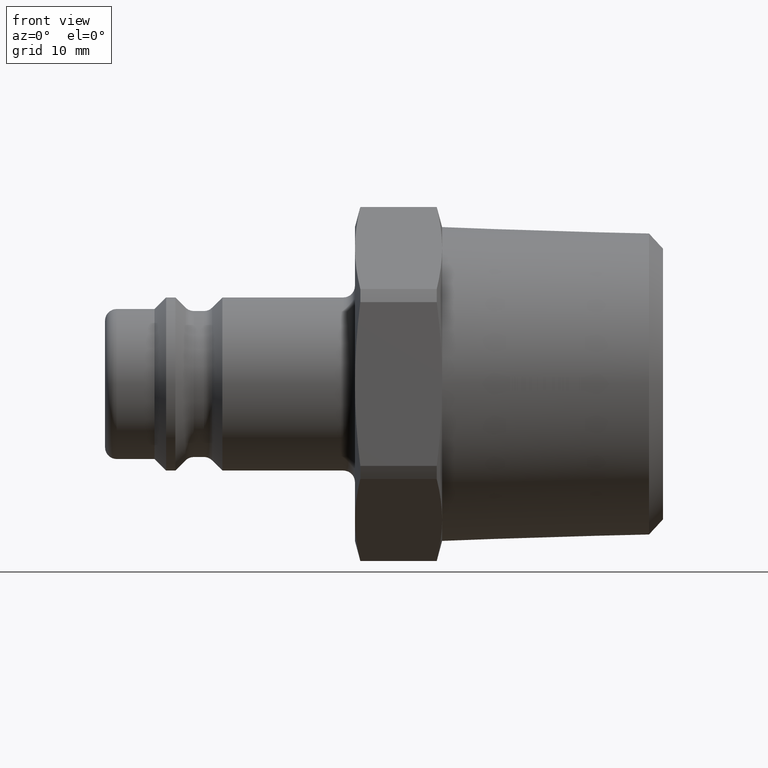
[diagram: clean part render]
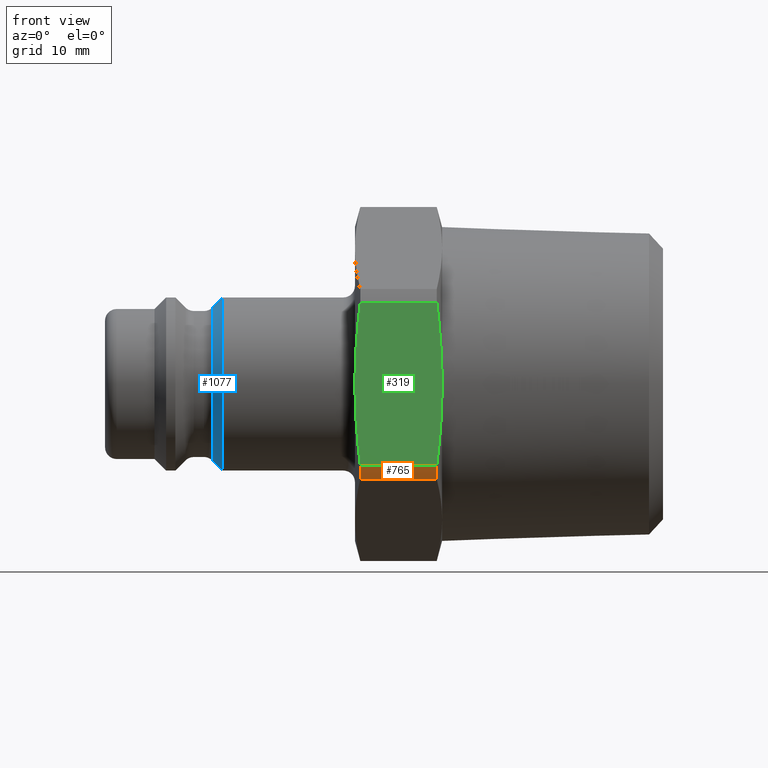
[diagram: same view with three faces highlighted in distinct colors, each labeled with its STEP entity id]
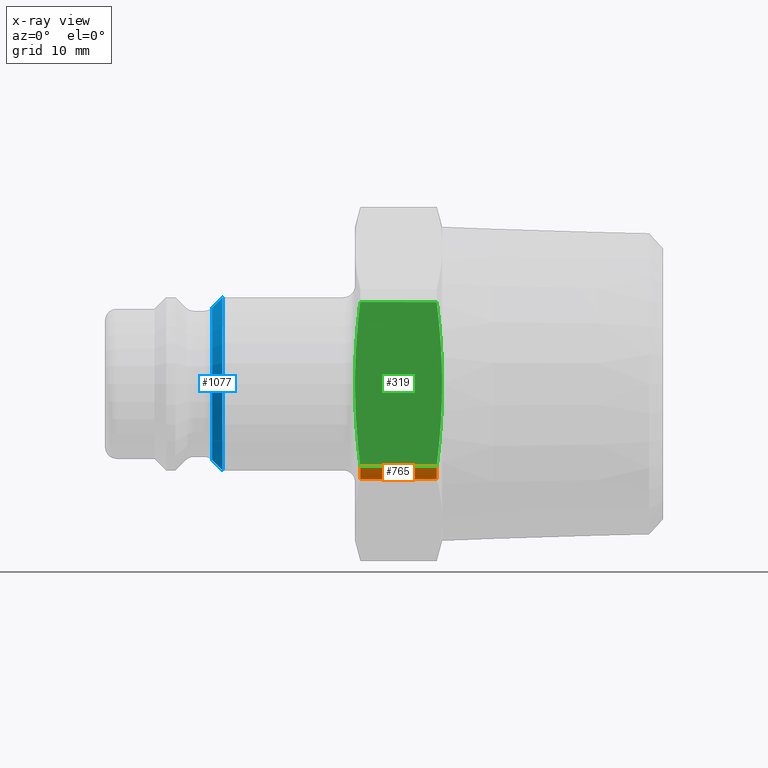
[diagram: x-ray of the same camera — body ghosted, the three highlighted faces saturated]
A machine part, front view with three faces highlighted in distinct colors.
The next image is the same camera in x-ray (body ghosted, the three faces saturated) — at least one of them is partly hidden behind the body in this view.
Their STEP definitions:

[orange] entity #765 — the highlighted cylindrical surface (partial cylindrical patch) has radius 15.225 mm, axis along (1, 0, 0).
#197=CARTESIAN_POINT('',(28.537787643056323,-12.846143760608012,-8.171732709884228));
#198=VERTEX_POINT('',#197);
#212=CARTESIAN_POINT('',(21.962212356943684,-12.846143760608012,-8.171732709884228));
#213=VERTEX_POINT('',#212);
#214=CARTESIAN_POINT('',(21.962212356943684,-12.846143760608012,-8.171732709884228));
#215=DIRECTION('',(1.0,0.0,0.0));
#216=VECTOR('',#215,6.575575286112638);
#217=LINE('',#214,#216);
#218=EDGE_CURVE('',#213,#198,#217,.T.);
#241=CARTESIAN_POINT('',(21.962212356943684,-13.500000000000004,-7.039220482411382));
#242=VERTEX_POINT('',#241);
#258=CARTESIAN_POINT('',(28.537787643056323,-13.500000000000004,-7.039220482411382));
#259=VERTEX_POINT('',#258);
#260=CARTESIAN_POINT('',(28.537787643056323,-13.500000000000004,-7.039220482411382));
#261=DIRECTION('',(-1.0,0.0,0.0));
#262=VECTOR('',#261,6.575575286112638);
#263=LINE('',#260,#262);
#264=EDGE_CURVE('',#259,#242,#263,.T.);
#590=CARTESIAN_POINT('',(28.537787643056319,0.0,0.0));
#591=DIRECTION('',(1.0,0.0,0.0));
#592=DIRECTION('',(0.0,1.0,0.0));
#593=AXIS2_PLACEMENT_3D('',#590,#591,#592);
#594=CIRCLE('',#593,15.225000000000000);
#595=EDGE_CURVE('',#259,#198,#594,.T.);
#748=CARTESIAN_POINT('',(25.250000000000004,0.0,0.0));
#749=DIRECTION('',(1.0,0.0,0.0));
#750=DIRECTION('',(0.0,1.0,0.0));
#751=AXIS2_PLACEMENT_3D('',#748,#749,#750);
#752=CYLINDRICAL_SURFACE('',#751,15.225000000000000);
#753=ORIENTED_EDGE('',*,*,#218,.T.);
#754=ORIENTED_EDGE('',*,*,#595,.F.);
#755=ORIENTED_EDGE('',*,*,#264,.T.);
#756=CARTESIAN_POINT('',(21.962212356943684,0.0,0.0));
#757=DIRECTION('',(1.0,0.0,0.0));
#758=DIRECTION('',(0.0,1.0,0.0));
#759=AXIS2_PLACEMENT_3D('',#756,#757,#758);
#760=CIRCLE('',#759,15.225000000000000);
#761=EDGE_CURVE('',#242,#213,#760,.T.);
#762=ORIENTED_EDGE('',*,*,#761,.T.);
#763=EDGE_LOOP('',(#753,#754,#755,#762));
#764=FACE_OUTER_BOUND('',#763,.T.);
#765=ADVANCED_FACE('',(#764),#752,.T.);

[blue] entity #1077 — the highlighted conical surface has half-angle 45 deg.
#980=CARTESIAN_POINT('',(10.100000000000000,7.500000000000000,0.0));
#981=VERTEX_POINT('',#980);
#982=CARTESIAN_POINT('',(10.100000000000000,0.0,0.0));
#983=DIRECTION('',(1.0,0.0,0.0));
#984=DIRECTION('',(0.0,1.0,0.0));
#985=AXIS2_PLACEMENT_3D('',#982,#983,#984);
#986=CIRCLE('',#985,7.500000000000000);
#987=EDGE_CURVE('',#981,#981,#986,.T.);
#1034=CARTESIAN_POINT('',(9.217893218813451,6.617893218813452,-1.620916E-015));
#1035=VERTEX_POINT('',#1034);
#1036=CARTESIAN_POINT('',(9.217893218813451,0.0,-8.104582E-016));
#1037=DIRECTION('',(-1.0,0.0,0.0));
#1038=DIRECTION('',(0.0,-1.0,0.0));
#1039=AXIS2_PLACEMENT_3D('',#1036,#1037,#1038);
#1040=CIRCLE('',#1039,6.617893218813452);
#1041=EDGE_CURVE('',#1035,#1035,#1040,.T.);
#1066=CARTESIAN_POINT('',(9.512499999999999,0.0,0.0));
#1067=DIRECTION('',(1.0,0.0,0.0));
#1068=DIRECTION('',(0.0,1.0,0.0));
#1069=AXIS2_PLACEMENT_3D('',#1066,#1067,#1068);
#1070=CONICAL_SURFACE('',#1069,6.912500000000001,44.999999999999979);
#1071=ORIENTED_EDGE('',*,*,#987,.F.);
#1072=EDGE_LOOP('',(#1071));
#1073=FACE_OUTER_BOUND('',#1072,.T.);
#1074=ORIENTED_EDGE('',*,*,#1041,.F.);
#1075=EDGE_LOOP('',(#1074));
#1076=FACE_BOUND('',#1075,.T.);
#1077=ADVANCED_FACE('',(#1073,#1076),#1070,.T.);

[green] entity #319 — the highlighted planar face has unit normal (0, 1, 0).
#236=CARTESIAN_POINT('',(29.438941219643269,-13.500000000000000,1.110223E-015));
#237=DIRECTION('',(0.0,1.0,0.0));
#238=DIRECTION('',(0.0,0.0,1.0));
#239=AXIS2_PLACEMENT_3D('',#236,#237,#238);
#240=PLANE('',#239);
#241=CARTESIAN_POINT('',(21.962212356943684,-13.500000000000004,-7.039220482411382));
#242=VERTEX_POINT('',#241);
#243=CARTESIAN_POINT('',(21.500000000000004,-13.500000000000000,2.248202E-015));
#244=VERTEX_POINT('',#243);
#245=CARTESIAN_POINT('',(21.962212356943684,-13.500000000000004,-7.039220482411360));
#246=CARTESIAN_POINT('',(21.500000000000004,-13.500000000000000,-3.308249835075842));
#247=CARTESIAN_POINT('',(21.500000000000000,-13.500000000000000,2.248202E-015));
#255=(BOUNDED_CURVE()B_SPLINE_CURVE(2,(#245,#246,#247),.UNSPECIFIED.,.F.,.U.)B_SPLINE_CURVE_WITH_KNOTS((3,3),(0.0,0.705781608914781),.UNSPECIFIED.)CURVE()GEOMETRIC_REPRESENTATION_ITEM()RATIONAL_B_SPLINE_CURVE((1.0,1.031449896451090,1.0))REPRESENTATION_ITEM(''));
#256=EDGE_CURVE('',#242,#244,#255,.T.);
#257=ORIENTED_EDGE('',*,*,#256,.F.);
#258=CARTESIAN_POINT('',(28.537787643056323,-13.500000000000004,-7.039220482411382));
#259=VERTEX_POINT('',#258);
#260=CARTESIAN_POINT('',(28.537787643056323,-13.500000000000004,-7.039220482411382));
#261=DIRECTION('',(-1.0,0.0,0.0));
#262=VECTOR('',#261,6.575575286112638);
#263=LINE('',#260,#262);
#264=EDGE_CURVE('',#259,#242,#263,.T.);
#265=ORIENTED_EDGE('',*,*,#264,.F.);
#266=CARTESIAN_POINT('',(29.000000000000039,-13.499999999999998,2.248202E-015));
#267=VERTEX_POINT('',#266);
#268=CARTESIAN_POINT('',(29.000000000000007,-13.500000000000000,2.248202E-015));
#269=CARTESIAN_POINT('',(29.000000000000014,-13.500000000000000,-3.308249835075886));
#270=CARTESIAN_POINT('',(28.537787643056319,-13.500000000000000,-7.039220482411403));
#278=(BOUNDED_CURVE()B_SPLINE_CURVE(2,(#268,#269,#270),.UNSPECIFIED.,.F.,.U.)B_SPLINE_CURVE_WITH_KNOTS((3,3),(0.705781608914785,1.411563217829570),.UNSPECIFIED.)CURVE()GEOMETRIC_REPRESENTATION_ITEM()RATIONAL_B_SPLINE_CURVE((1.0,1.031449896451026,1.0))REPRESENTATION_ITEM(''));
#279=EDGE_CURVE('',#267,#259,#278,.T.);
#280=ORIENTED_EDGE('',*,*,#279,.F.);
#281=CARTESIAN_POINT('',(28.537787643056323,-13.499999999999998,7.039220482411387));
#282=VERTEX_POINT('',#281);
#283=CARTESIAN_POINT('',(28.537787643056319,-13.500000000000000,7.039220482411405));
#284=CARTESIAN_POINT('',(29.000000000000004,-13.500000000000000,3.308249835075890));
#285=CARTESIAN_POINT('',(29.000000000000007,-13.500000000000000,2.248202E-015));
#293=(BOUNDED_CURVE()B_SPLINE_CURVE(2,(#283,#284,#285),.UNSPECIFIED.,.F.,.U.)B_SPLINE_CURVE_WITH_KNOTS((3,3),(0.0,0.705781608914785),.UNSPECIFIED.)CURVE()GEOMETRIC_REPRESENTATION_ITEM()RATIONAL_B_SPLINE_CURVE((1.0,1.031449896451026,1.0))REPRESENTATION_ITEM(''));
#294=EDGE_CURVE('',#282,#267,#293,.T.);
#295=ORIENTED_EDGE('',*,*,#294,.F.);
#296=CARTESIAN_POINT('',(21.962212356943684,-13.499999999999998,7.039220482411387));
#297=VERTEX_POINT('',#296);
#298=CARTESIAN_POINT('',(21.962212356943684,-13.499999999999998,7.039220482411387));
#299=DIRECTION('',(1.0,0.0,0.0));
#300=VECTOR('',#299,6.575575286112638);
#301=LINE('',#298,#300);
#302=EDGE_CURVE('',#297,#282,#301,.T.);
#303=ORIENTED_EDGE('',*,*,#302,.F.);
#304=CARTESIAN_POINT('',(21.500000000000000,-13.500000000000000,2.248202E-015));
#305=CARTESIAN_POINT('',(21.499999999999993,-13.500000000000000,3.308249835075847));
#306=CARTESIAN_POINT('',(21.962212356943684,-13.500000000000000,7.039220482411364));
#314=(BOUNDED_CURVE()B_SPLINE_CURVE(2,(#304,#305,#306),.UNSPECIFIED.,.F.,.U.)B_SPLINE_CURVE_WITH_KNOTS((3,3),(0.705781608914781,1.411563217829561),.UNSPECIFIED.)CURVE()GEOMETRIC_REPRESENTATION_ITEM()RATIONAL_B_SPLINE_CURVE((1.0,1.031449896451088,1.0))REPRESENTATION_ITEM(''));
#315=EDGE_CURVE('',#244,#297,#314,.T.);
#316=ORIENTED_EDGE('',*,*,#315,.F.);
#317=EDGE_LOOP('',(#257,#265,#280,#295,#303,#316));
#318=FACE_OUTER_BOUND('',#317,.T.);
#319=ADVANCED_FACE('',(#318),#240,.F.);